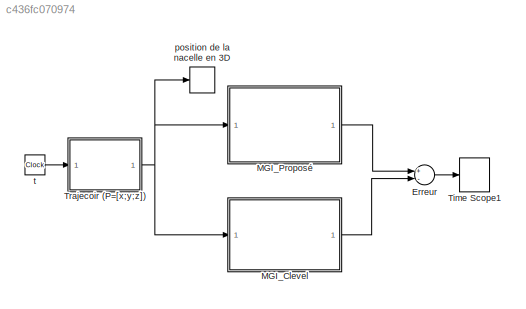
MODEL slx_c436fc070974
KIND model
CONFIG AbsTol = auto
CONFIG FixedStep = auto
CONFIG MaxStep = 0.001
CONFIG MinStep = auto
CONFIG RelTol = 1e-3
CONFIG SampleTimeConstraint = Unconstrained
CONFIG Solver = ode45
CONFIG SolverMode = Auto
CONFIG SolverName = ode45
CONFIG StartTime = 0.0
CONFIG StopTime = 3
BLOCK [Sum] Erreur
  InputSameDT = off
  Inputs = +-
  OutDataTypeStr = Inherit: Inherit via internal rule
  Ports = [2, 1]
  SaturateOnIntegerOverflow = off
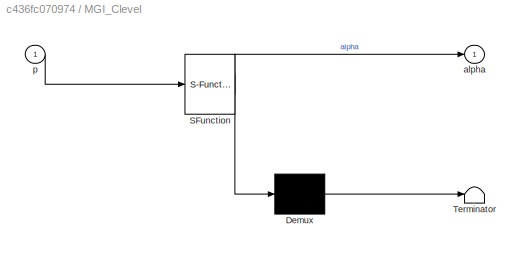
BLOCK [SubSystem] MGI_Clevel
  ErrorFcn = Stateflow.Translate.translate
  PermitHierarchicalResolution = ExplicitOnly
  Ports = [1, 1]
  RequestExecContextInheritance = off
  SFBlockType = MATLAB Function
  TreatAsAtomicUnit = on
BLOCK [Demux] MGI_Clevel/ Demux 
  Outputs = 1
  Ports = [1, 1]
BLOCK [S-Function] MGI_Clevel/ SFunction 
  EnableBusSupport = on
  FunctionName = sf_sfun
  PortCounts = [1 2]
  Ports = [1, 2]
  Tag = Stateflow S-Function B_1_MGI 3
BLOCK [Terminator] MGI_Clevel/ Terminator 
BLOCK [Outport] MGI_Clevel/alpha
  IconDisplay = Port number
BLOCK [Inport] MGI_Clevel/p
  IconDisplay = Port number
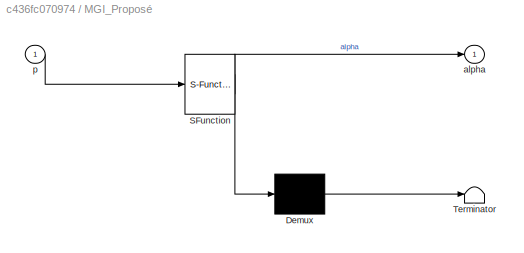
BLOCK [SubSystem] MGI_Proposé
  ErrorFcn = Stateflow.Translate.translate
  PermitHierarchicalResolution = ExplicitOnly
  Ports = [1, 1]
  RequestExecContextInheritance = off
  SFBlockType = MATLAB Function
  TreatAsAtomicUnit = on
BLOCK [Demux] MGI_Proposé/ Demux 
  Outputs = 1
  Ports = [1, 1]
BLOCK [S-Function] MGI_Proposé/ SFunction 
  EnableBusSupport = on
  FunctionName = sf_sfun
  PortCounts = [1 2]
  Ports = [1, 2]
  Tag = Stateflow S-Function B_1_MGI 2
BLOCK [Terminator] MGI_Proposé/ Terminator 
BLOCK [Outport] MGI_Proposé/alpha
  IconDisplay = Port number
BLOCK [Inport] MGI_Proposé/p
  IconDisplay = Port number
BLOCK [TimeScope] Time Scope1
  DefaultConfigurationName = spbscopes.TimeScopeBlockCfg
  NumInputPorts = 1
  Ports = [1]
  ScopeSpecificationString = spbscopes.TimeScopeBlockCfg('CurrentConfiguration', extmgr.ConfigurationSet(extmgr.Configuration('Core','General UI',true,'FigureColor',[1 1 1]),extmgr.Configuration('Core','Source UI',true),extmgr.Configuration('Sources','WiredSimulink',true,'DataLoggingVariableName','ScopeData4'),extmgr.Configuration('Visuals','Time Domain',true,'DisplayPropertyDefaults',struct('MinYLimReal','-2.7755575615628914...<+2666ch>
  UserDataPersistent = on
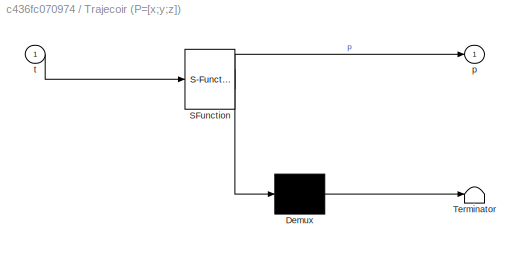
BLOCK [SubSystem] Trajecoir (P=[x;y;z])
  ErrorFcn = Stateflow.Translate.translate
  PermitHierarchicalResolution = ExplicitOnly
  Ports = [1, 1]
  RequestExecContextInheritance = off
  SFBlockType = MATLAB Function
  TreatAsAtomicUnit = on
BLOCK [Demux] Trajecoir (P=[x;y;z])/ Demux 
  Outputs = 1
  Ports = [1, 1]
BLOCK [S-Function] Trajecoir (P=[x;y;z])/ SFunction 
  EnableBusSupport = on
  FunctionName = sf_sfun
  PortCounts = [1 2]
  Ports = [1, 2]
  Tag = Stateflow S-Function B_1_MGI 5
BLOCK [Terminator] Trajecoir (P=[x;y;z])/ Terminator 
BLOCK [Outport] Trajecoir (P=[x;y;z])/p
  IconDisplay = Port number
BLOCK [Inport] Trajecoir (P=[x;y;z])/t
  IconDisplay = Port number
BLOCK [S-Function] position de la nacelle en 3D 
  CopyFcn = sfun3d([],[],[],'CopyBlock')
  DeleteFcn = sfun3d([],[],[],'DeleteBlock')
  FunctionName = sfun3d
  LoadFcn = sfun3d([],[],[],'LoadBlock')
  NameChangeFcn = sfun3d([],[],[],'NameChange')
  Parameters = ax,T,np,cp,gd,ls,mk
  Ports = [1]
  StartFcn = sfun3d([],[],[],'Start')
  StopFcn = sfun3d([],[],[],'Stop')
BLOCK [Clock] t
LINE Erreur:1 -> Time Scope1:1
LINE MGI_Clevel:1 -> Erreur:2
LINE MGI_Proposé:1 -> Erreur:1
NET Trajecoir (P=[x;y;z]):1 -> MGI_Clevel:1, MGI_Proposé:1, position de la nacelle en 3D :1
LINE t:1 -> Trajecoir (P=[x;y;z]):1
note: NET lines group one-source signal fan-out (src -> all destinations, sorted); 1:1 wires keep LINE
CHART MGI_Proposé states=1 transitions=1
  STATE_LABEL 'eML_blk_kernel()'
  STATE_LABEL 'SCRIPT:\nfunction alpha = MGI(p)\n\nl1 = 0.19992; \nl2 = 0.334; \nr = 0.126; \nphi2 = 2*pi/3;\nphi3 = 4*pi/3;\n\n%% projection de P sur Ri\nA2=[cos(phi2) sin(phi2) 0\n    -sin(phi2) cos(phi2) 0\n    0            0      1 ]; \nA3=[cos(phi3) sin(phi3) 0\n    -sin(phi3) cos(phi3) 0\n    0            0      1 ];\np2=A2*p; p3=A3*p ;\n\nx1=p(1); y1=p(2) ; z1=p(3) ; %% p1=p\nx2=p2(1); y2=p2(2) ; z2=p2(3) ;\nx3=p3(1); y3=p3(...<+700ch>'
CHART MGI_Clevel states=1 transitions=1
  STATE_LABEL 'eML_blk_kernel()'
  STATE_LABEL 'SCRIPT:\nfunction alpha = MGI(p)\n\nx=p(1); y=p(2) ; z=p(3);\n\n%% lesconstantes\nl1 = 0.19992; \nl2 = 0.334; \nr = 0.126; \nphi1 = 0 ;\nphi2 = 2*pi/3;\nphi3 = 4*pi/3;\n\n%% Clacule de Alpha_i :\n A = -2*l1*z*[1; 1; 1];\n\n B = [2*r*l1 - 2*l1*x*cos(phi1) - 2*l1*y*sin(phi1);\n      2*r*l1 - 2*l1*x*cos(phi2) - 2*l1*y*sin(phi2);\n      2*r*l1 - 2*l1*x*cos(phi3) - 2*l1*y*sin(phi3)];\n\n C = [l2^2 - l1^2 - r^2 + 2*r*y*sin...<+448ch>'
CHART Trajecoir (P=[x;y;z]) states=1 transitions=1
  STATE_LABEL 'eML_blk_kernel()'
  STATE_LABEL 'SCRIPT:\nfunction p = fcn(t)\n \nf = 3; \nR=0.25;\nx=R*cos(f*t) ; y=R*sin(f*t) ; z=-0.35;\n\np=[x ; y ; z];\n\n'
